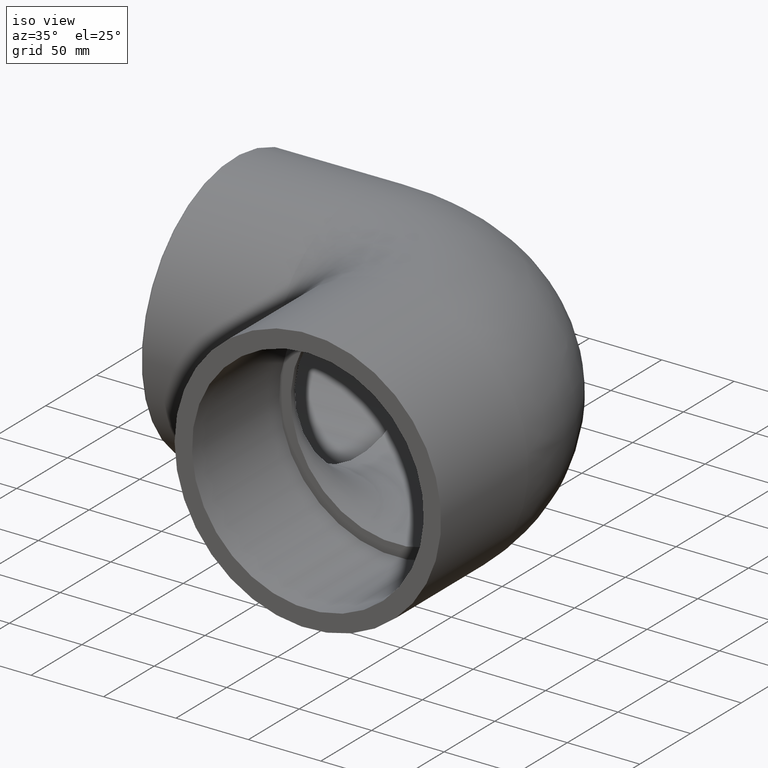
[diagram: clean part render]
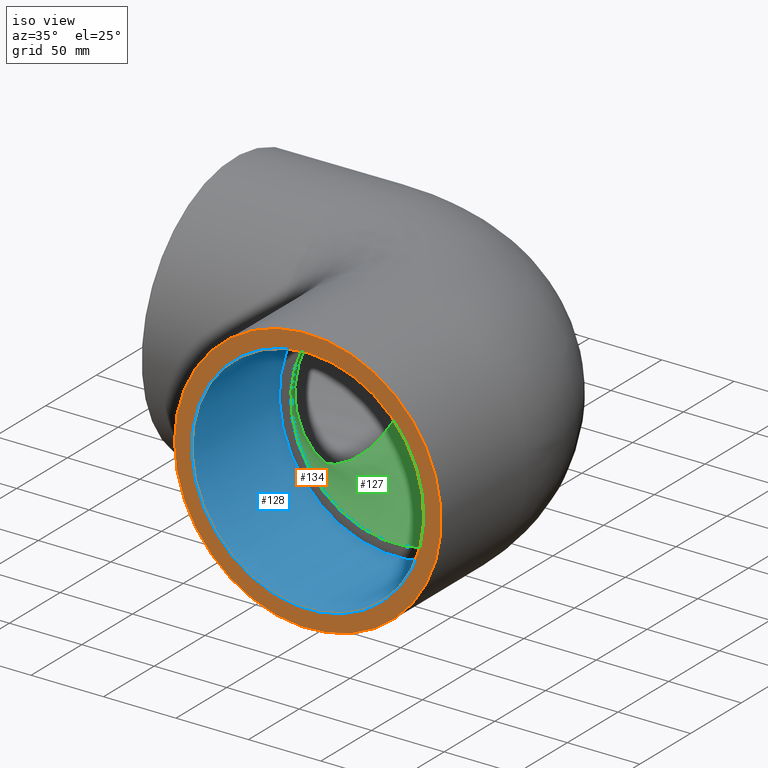
[diagram: same view with three faces highlighted in distinct colors, each labeled with its STEP entity id]
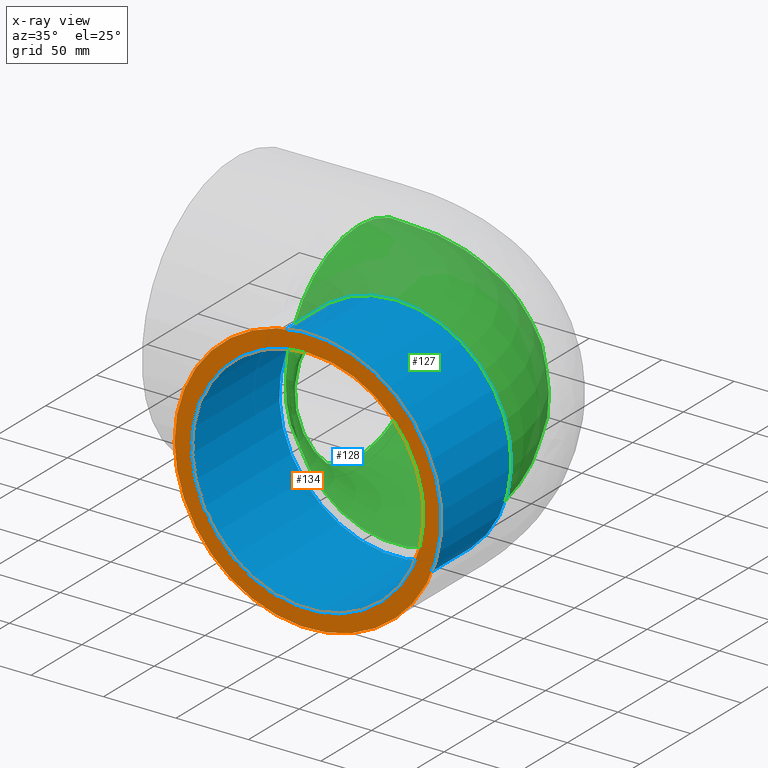
[diagram: x-ray of the same camera — body ghosted, the three highlighted faces saturated]
A machine part, iso view with three faces highlighted in distinct colors.
The next image is the same camera in x-ray (body ghosted, the three faces saturated) — at least one of them is partly hidden behind the body in this view.
Their STEP definitions:

[orange] entity #134 — the highlighted planar face has unit normal (-0, -1, 0).
#19=PLANE('',#156);
#31=FACE_BOUND('',#60,.T.);
#42=FACE_OUTER_BOUND('',#59,.T.);
#59=EDGE_LOOP('',(#116));
#60=EDGE_LOOP('',(#117));
#70=CIRCLE('',#145,80.);
#75=CIRCLE('',#155,92.);
#81=VERTEX_POINT('',#217);
#86=VERTEX_POINT('',#259);
#92=EDGE_CURVE('',#81,#81,#70,.T.);
#98=EDGE_CURVE('',#86,#86,#75,.T.);
#116=ORIENTED_EDGE('',*,*,#98,.F.);
#117=ORIENTED_EDGE('',*,*,#92,.T.);
#134=ADVANCED_FACE('',(#42,#31),#19,.T.);
#145=AXIS2_PLACEMENT_3D('',#218,#174,#175);
#155=AXIS2_PLACEMENT_3D('',#260,#194,#195);
#156=AXIS2_PLACEMENT_3D('',#261,#196,#197);
#174=DIRECTION('center_axis',(6.12323399573677E-17,1.,0.));
#175=DIRECTION('ref_axis',(0.,0.,-1.));
#194=DIRECTION('center_axis',(6.12323399573677E-17,1.,0.));
#195=DIRECTION('ref_axis',(0.,0.,-1.));
#196=DIRECTION('center_axis',(-6.12323399573677E-17,-1.,0.));
#197=DIRECTION('ref_axis',(0.,0.,1.));
#217=CARTESIAN_POINT('',(-2.02066721859313E-14,-170.,80.));
#218=CARTESIAN_POINT('Origin',(-1.04094977927525E-14,-170.,0.));
#259=CARTESIAN_POINT('',(-92.,-170.,0.));
#260=CARTESIAN_POINT('Origin',(-1.04094977927525E-14,-170.,0.));
#261=CARTESIAN_POINT('Origin',(-92.,-170.,0.));

[blue] entity #128 — the highlighted cylindrical surface (bore or boss wall) has radius 80 mm, axis along (0, 1, 0).
#21=CYLINDRICAL_SURFACE('',#143,80.);
#26=FACE_BOUND('',#49,.T.);
#36=FACE_OUTER_BOUND('',#48,.T.);
#48=EDGE_LOOP('',(#103));
#49=EDGE_LOOP('',(#104));
#69=CIRCLE('',#144,80.);
#70=CIRCLE('',#145,80.);
#80=VERTEX_POINT('',#215);
#81=VERTEX_POINT('',#217);
#91=EDGE_CURVE('',#80,#80,#69,.T.);
#92=EDGE_CURVE('',#81,#81,#70,.T.);
#103=ORIENTED_EDGE('',*,*,#91,.T.);
#104=ORIENTED_EDGE('',*,*,#92,.F.);
#128=ADVANCED_FACE('',(#36,#26),#21,.F.);
#143=AXIS2_PLACEMENT_3D('',#214,#170,#171);
#144=AXIS2_PLACEMENT_3D('',#216,#172,#173);
#145=AXIS2_PLACEMENT_3D('',#218,#174,#175);
#170=DIRECTION('center_axis',(6.12323399573677E-17,1.,0.));
#171=DIRECTION('ref_axis',(0.,0.,-1.));
#172=DIRECTION('center_axis',(6.12323399573677E-17,1.,0.));
#173=DIRECTION('ref_axis',(0.,0.,-1.));
#174=DIRECTION('center_axis',(6.12323399573677E-17,1.,0.));
#175=DIRECTION('ref_axis',(0.,0.,-1.));
#214=CARTESIAN_POINT('Origin',(-1.04094977927525E-14,-170.,0.));
#215=CARTESIAN_POINT('',(-1.49406909495977E-14,-84.,80.));
#216=CARTESIAN_POINT('Origin',(-5.14351655641889E-15,-84.,0.));
#217=CARTESIAN_POINT('',(-2.02066721859313E-14,-170.,80.));
#218=CARTESIAN_POINT('Origin',(-1.04094977927525E-14,-170.,0.));

[green] entity #127 — the highlighted toroidal blend (fillet) surface has major radius 84 mm and minor (blend) radius 72 mm.
#25=FACE_BOUND('',#47,.T.);
#35=FACE_OUTER_BOUND('',#46,.T.);
#46=EDGE_LOOP('',(#101));
#47=EDGE_LOOP('',(#102));
#67=CIRCLE('',#141,72.);
#68=CIRCLE('',#142,72.);
#78=VERTEX_POINT('',#210);
#79=VERTEX_POINT('',#212);
#89=EDGE_CURVE('',#78,#78,#67,.T.);
#90=EDGE_CURVE('',#79,#79,#68,.T.);
#101=ORIENTED_EDGE('',*,*,#89,.F.);
#102=ORIENTED_EDGE('',*,*,#90,.F.);
#125=TOROIDAL_SURFACE('',#140,84.,72.);
#127=ADVANCED_FACE('',(#35,#25),#125,.F.);
#140=AXIS2_PLACEMENT_3D('',#209,#164,#165);
#141=AXIS2_PLACEMENT_3D('',#211,#166,#167);
#142=AXIS2_PLACEMENT_3D('',#213,#168,#169);
#164=DIRECTION('center_axis',(0.,0.,-1.));
#165=DIRECTION('ref_axis',(-1.,0.,0.));
#166=DIRECTION('center_axis',(6.12323399573677E-17,1.,0.));
#167=DIRECTION('ref_axis',(1.,-6.12323399573677E-17,0.));
#168=DIRECTION('center_axis',(1.,0.,0.));
#169=DIRECTION('ref_axis',(0.,1.,0.));
#209=CARTESIAN_POINT('Origin',(-84.,-84.,0.));
#210=CARTESIAN_POINT('',(8.88178419700125E-15,-84.,72.));
#211=CARTESIAN_POINT('Origin',(0.,-84.,0.));
#212=CARTESIAN_POINT('',(-84.,8.81745695386094E-15,72.));
#213=CARTESIAN_POINT('Origin',(-84.,0.,0.));